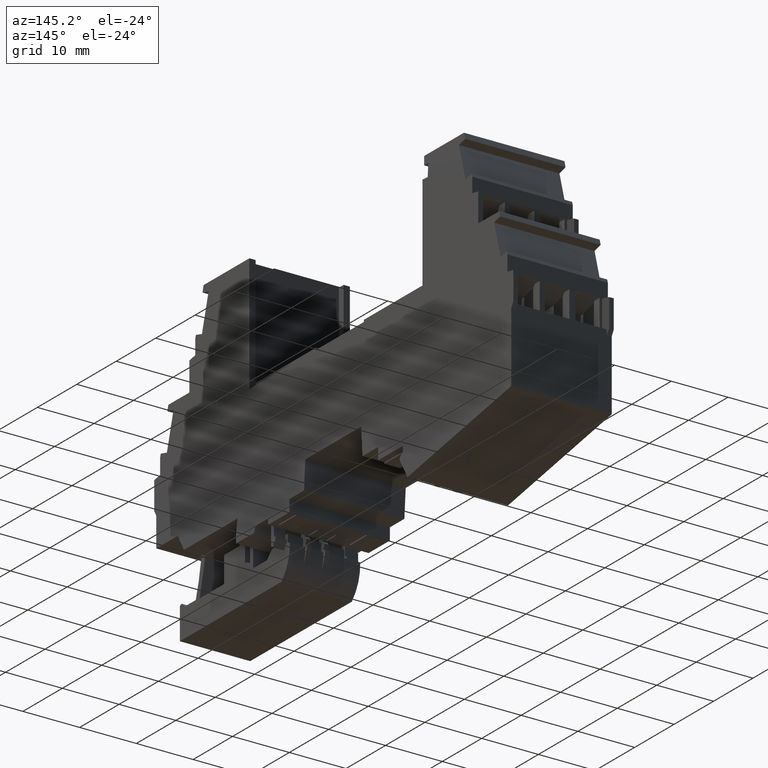
[diagram: clean part render]
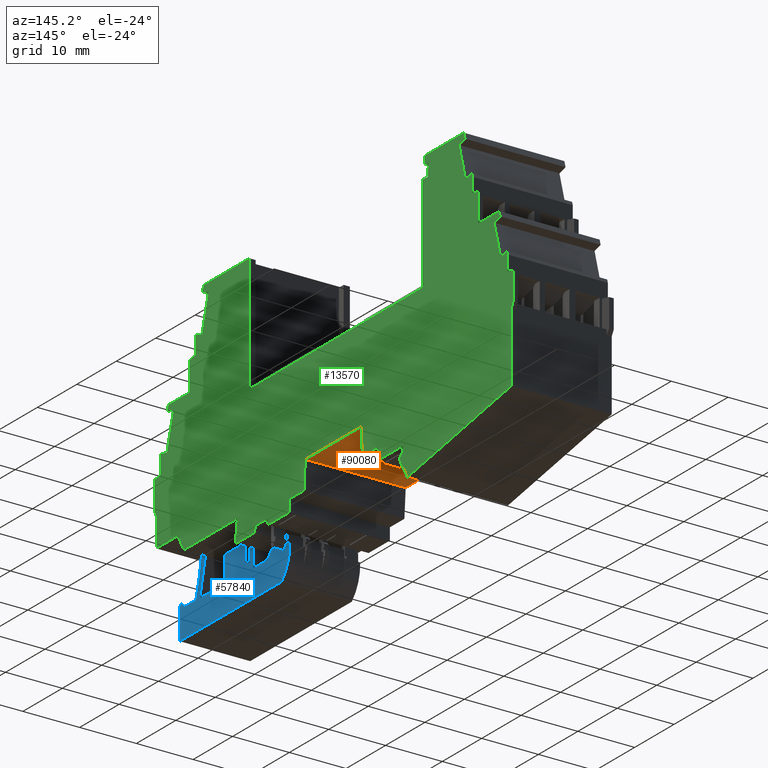
[diagram: same view with three faces highlighted in distinct colors, each labeled with its STEP entity id]
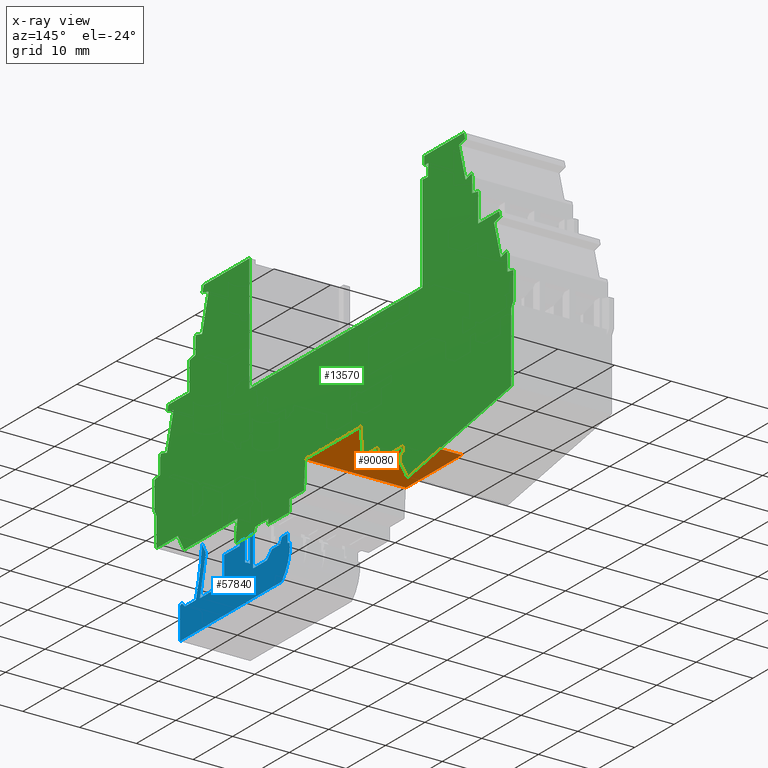
[diagram: x-ray of the same camera — body ghosted, the three highlighted faces saturated]
A machine part, auxiliary view with three faces highlighted in distinct colors.
The next image is the same camera in x-ray (body ghosted, the three faces saturated) — at least one of them is partly hidden behind the body in this view.
Their STEP definitions:

[orange] entity #90080 — the highlighted planar face has unit normal (0, 0, -1).
#3320=CARTESIAN_POINT('',(131.923225181691,11.9499999995831,
-1.11334144272988));
#3330=VERTEX_POINT('',#3320);
#3360=CARTESIAN_POINT('',(192.854165374852,11.9499999995832,
-1.11334144272988));
#3370=DIRECTION('',(1.,3.21694825271889E-17,-1.12961852401773E-23));
#3380=VECTOR('',#3370,1.);
#3390=LINE('',#3360,#3380);
#3400=CARTESIAN_POINT('',(146.082082747328,11.9499999995831,
-1.11334144272988));
#3410=VERTEX_POINT('',#3400);
#3420=EDGE_CURVE('',#3330,#3410,#3390,.T.);
#10810=CARTESIAN_POINT('',(146.082082747328,11.950000000364,
16.5866585537185));
#10820=VERTEX_POINT('',#10810);
#10850=CARTESIAN_POINT('',(192.854165375628,11.950000000364,
16.5866585537308));
#10860=DIRECTION('',(1.,3.21694941564861E-17,2.63640960903014E-13));
#10870=VECTOR('',#10860,1.);
#10880=LINE('',#10850,#10870);
#10890=CARTESIAN_POINT('',(131.923225181691,11.9500000003639,
16.5866585537148));
#10900=VERTEX_POINT('',#10890);
#10910=EDGE_CURVE('',#10900,#10820,#10880,.T.);
#89870=CARTESIAN_POINT('',(146.082082747328,11.9499999995831,
-1.11334144272988));
#89880=DIRECTION('',(3.21694825262236E-17,-1.,4.41130550527766E-11));
#89890=DIRECTION('',(1.,3.21694825262236E-17,-1.13026475887129E-23));
#89900=AXIS2_PLACEMENT_3D('',#89870,#89880,#89890);
#89910=PLANE('',#89900);
#89920=CARTESIAN_POINT('',(131.923225181691,11.9500000009027,
28.8000000021846));
#89930=DIRECTION('',(-1.13026475887129E-23,-4.41130550527766E-11,-1.));
#89940=VECTOR('',#89930,1.);
#89950=LINE('',#89920,#89940);
#89960=EDGE_CURVE('',#10900,#3330,#89950,.T.);
#89970=ORIENTED_EDGE('',*,*,#89960,.T.);
#89980=ORIENTED_EDGE('',*,*,#10910,.F.);
#89990=CARTESIAN_POINT('',(146.082082747328,11.9500000009027,
28.800000001564));
#90000=DIRECTION('',(-1.13026475887129E-23,-4.41130550527766E-11,-1.));
#90010=VECTOR('',#90000,1.);
#90020=LINE('',#89990,#90010);
#90030=EDGE_CURVE('',#10820,#3410,#90020,.T.);
#90040=ORIENTED_EDGE('',*,*,#90030,.F.);
#90050=ORIENTED_EDGE('',*,*,#3420,.T.);
#90060=EDGE_LOOP('',(#90050,#90040,#89980,#89970));
#90070=FACE_OUTER_BOUND('',#90060,.T.);
#90080=ADVANCED_FACE('',(#90070),#89910,.T.);

[blue] entity #57840 — the highlighted planar face has unit normal (1, 0, 0).
#51550=CARTESIAN_POINT('',(100.745063777333,9.61434649274897,
12.4366585568556));
#51560=VERTEX_POINT('',#51550);
#51590=CARTESIAN_POINT('',(94.0893224635806,21.1424286102025,
12.4366585563462));
#51600=DIRECTION('',(-0.5,0.866025403784439,-3.82689712336887E-11));
#51610=VECTOR('',#51600,1.);
#51620=LINE('',#51590,#51610);
#51630=CARTESIAN_POINT('',(99.7945118984799,11.2607506421518,
12.4366585567829));
#51640=VERTEX_POINT('',#51630);
#51650=EDGE_CURVE('',#51560,#51640,#51620,.T.);
#53090=CARTESIAN_POINT('',(98.1962249565624,3.04534658349906,
12.4366585571451));
#53100=VERTEX_POINT('',#53090);
#53510=CARTESIAN_POINT('',(63.4807811780964,14.0623254594777,
12.4366585566545));
#53520=DIRECTION('',(-1.31820480445855E-13,4.41130550527766E-11,1.));
#53530=DIRECTION('',(0.949996010420321,-0.312262037695065,
1.39000613902499E-11));
#53540=AXIS2_PLACEMENT_3D('',#53510,#53520,#53530);
#53550=CIRCLE('',#53540,36.42164);
#53560=EDGE_CURVE('',#53100,#51640,#53550,.T.);
#54220=CARTESIAN_POINT('',(95.4258124931298,3.04534658349906,
12.4366585571447));
#54230=VERTEX_POINT('',#54220);
#54260=CARTESIAN_POINT('',(171.854165368655,-73.3830062920261,
12.4366585605263));
#54270=DIRECTION('',(-0.707106781186548,0.707106781186547,
-3.1285900416963E-11));
#54280=VECTOR('',#54270,1.);
#54290=LINE('',#54260,#54280);
#54300=CARTESIAN_POINT('',(94.8358629994676,3.63529607716127,
12.4366585571186));
#54310=VERTEX_POINT('',#54300);
#54320=EDGE_CURVE('',#54230,#54310,#54290,.T.);
#55450=CARTESIAN_POINT('',(171.854165368655,3.04534658349906,
12.4366585571548));
#55460=DIRECTION('',(1.,1.56391626156808E-19,1.31820480445855E-13));
#55470=VECTOR('',#55460,1.);
#55480=LINE('',#55450,#55470);
#55490=EDGE_CURVE('',#54230,#53100,#55480,.T.);
#55620=CARTESIAN_POINT('',(120.765599077644,0.59869392470689,
12.436658557256));
#55630=DIRECTION('',(-1.31820480445855E-13,4.41130550527766E-11,1.));
#55640=DIRECTION('',(1.,1.56391622925634E-19,1.31820480445856E-13));
#55650=AXIS2_PLACEMENT_3D('',#55620,#55630,#55640);
#55660=PLANE('',#55650);
#55670=CARTESIAN_POINT('',(94.5530202869921,3.35245336468576,
12.4366585571311));
#55680=DIRECTION('',(-1.31820480445855E-13,4.41130550527766E-11,1.));
#55690=DIRECTION('',(1.,1.56391622925634E-19,1.31820480445855E-13));
#55700=AXIS2_PLACEMENT_3D('',#55670,#55680,#55690);
#55710=CIRCLE('',#55700,0.4);
#55720=CARTESIAN_POINT('',(94.1530202869931,3.35245336468577,
12.436658557131));
#55730=VERTEX_POINT('',#55720);
#55740=EDGE_CURVE('',#54310,#55730,#55710,.T.);
#55750=ORIENTED_EDGE('',*,*,#55740,.T.);
#55760=ORIENTED_EDGE('',*,*,#54320,.T.);
#55770=ORIENTED_EDGE('',*,*,#55490,.F.);
#55780=ORIENTED_EDGE('',*,*,#53560,.F.);
#55790=ORIENTED_EDGE('',*,*,#51650,.T.);
#55800=CARTESIAN_POINT('',(98.8921021838281,1.58216729906143,
12.4366585572097));
#55810=DIRECTION('',(0.224788299976077,0.974407625274898,
-4.29544655158954E-11));
#55820=VECTOR('',#55810,1.);
#55830=LINE('',#55800,#55820);
#55840=CARTESIAN_POINT('',(99.2076506579992,2.95000023079729,
12.4366585571494));
#55850=VERTEX_POINT('',#55840);
#55860=EDGE_CURVE('',#55850,#51560,#55830,.T.);
#55870=ORIENTED_EDGE('',*,*,#55860,.T.);
#55880=CARTESIAN_POINT('',(171.854165368655,2.95000023079729,
12.436658557159));
#55890=DIRECTION('',(-1.,-1.5640957856104E-19,-1.31820480445855E-13));
#55900=VECTOR('',#55890,1.);
#55910=LINE('',#55880,#55900);
#55920=CARTESIAN_POINT('',(105.381749091258,2.95000023079729,
12.4366585571502));
#55930=VERTEX_POINT('',#55920);
#55940=EDGE_CURVE('',#55930,#55850,#55910,.T.);
#55950=ORIENTED_EDGE('',*,*,#55940,.T.);
#55960=CARTESIAN_POINT('',(105.381749091258,21.1424286102025,
12.4366585563477));
#55970=DIRECTION('',(1.56403759803267E-19,-1.,4.41130550527766E-11));
#55980=VECTOR('',#55970,1.);
#55990=LINE('',#55960,#55980);
#56000=CARTESIAN_POINT('',(105.381749091258,7.5500006771132,
12.4366585569473));
#56010=VERTEX_POINT('',#56000);
#56020=EDGE_CURVE('',#56010,#55930,#55990,.T.);
#56030=ORIENTED_EDGE('',*,*,#56020,.T.);
#56040=CARTESIAN_POINT('',(171.854165368655,7.55000067711319,
12.4366585569561));
#56050=DIRECTION('',(1.,1.5640957856104E-19,1.31820480445855E-13));
#56060=VECTOR('',#56050,1.);
#56070=LINE('',#56040,#56060);
#56080=CARTESIAN_POINT('',(109.305482962606,7.55000067711319,
12.4366585569478));
#56090=VERTEX_POINT('',#56080);
#56100=EDGE_CURVE('',#56010,#56090,#56070,.T.);
#56110=ORIENTED_EDGE('',*,*,#56100,.F.);
#56120=CARTESIAN_POINT('',(109.305482962606,21.1424286102025,
12.4366585563482));
#56130=DIRECTION('',(-1.56403759803267E-19,1.,-4.41130550527766E-11));
#56140=VECTOR('',#56130,1.);
#56150=LINE('',#56120,#56140);
#56160=CARTESIAN_POINT('',(109.305482962606,8.85000046142769,
12.4366585568905));
#56170=VERTEX_POINT('',#56160);
#56180=EDGE_CURVE('',#56090,#56170,#56150,.T.);
#56190=ORIENTED_EDGE('',*,*,#56180,.F.);
#56200=CARTESIAN_POINT('',(171.854165368655,8.85000046144371,
12.4366585568987));
#56210=DIRECTION('',(-1.,-2.56108516341008E-13,-1.31820480434553E-13));
#56220=VECTOR('',#56210,1.);
#56230=LINE('',#56200,#56220);
#56240=CARTESIAN_POINT('',(110.679216833954,8.85000046142805,
12.4366585568907));
#56250=VERTEX_POINT('',#56240);
#56260=EDGE_CURVE('',#56250,#56170,#56230,.T.);
#56270=ORIENTED_EDGE('',*,*,#56260,.T.);
#56280=CARTESIAN_POINT('',(110.679216833954,21.1424286102025,
12.4366585563484));
#56290=DIRECTION('',(1.56403759803267E-19,-1.,4.41130550527766E-11));
#56300=VECTOR('',#56290,1.);
#56310=LINE('',#56280,#56300);
#56320=CARTESIAN_POINT('',(110.679216833954,4.42514568667508,
12.4366585570859));
#56330=VERTEX_POINT('',#56320);
#56340=EDGE_CURVE('',#56250,#56330,#56310,.T.);
#56350=ORIENTED_EDGE('',*,*,#56340,.F.);
#56360=CARTESIAN_POINT('',(171.854165368655,-20.4075167047586,
12.4366585581894));
#56370=DIRECTION('',(-0.926570378631504,0.376121434436635,
-1.67140203646241E-11));
#56380=VECTOR('',#56370,1.);
#56390=LINE('',#56360,#56380);
#56400=CARTESIAN_POINT('',(111.336864791569,4.15818755928736,
12.4366585570977));
#56410=VERTEX_POINT('',#56400);
#56420=EDGE_CURVE('',#56410,#56330,#56390,.T.);
#56430=ORIENTED_EDGE('',*,*,#56420,.T.);
#56440=CARTESIAN_POINT('',(171.854165368655,-34.0603519013393,
12.4366585587916));
#56450=DIRECTION('',(-0.845507280671106,0.533963892348679,
-2.36662686193386E-11));
#56460=VECTOR('',#56450,1.);
#56470=LINE('',#56440,#56460);
#56480=CARTESIAN_POINT('',(111.936976935343,3.77919825492419,
12.4366585571145));
#56490=VERTEX_POINT('',#56480);
#56500=EDGE_CURVE('',#56490,#56410,#56470,.T.);
#56510=ORIENTED_EDGE('',*,*,#56500,.T.);
#56520=CARTESIAN_POINT('',(111.936976935343,21.1424286102025,
12.4366585563486));
#56530=DIRECTION('',(1.56403759803267E-19,-1.,4.41130550527766E-11));
#56540=VECTOR('',#56530,1.);
#56550=LINE('',#56520,#56540);
#56560=CARTESIAN_POINT('',(111.936976935343,8.85000046142837,
12.4366585568908));
#56570=VERTEX_POINT('',#56560);
#56580=EDGE_CURVE('',#56570,#56490,#56550,.T.);
#56590=ORIENTED_EDGE('',*,*,#56580,.T.);
#56600=CARTESIAN_POINT('',(112.795663618024,8.85000046142858,
12.4366585568909));
#56610=VERTEX_POINT('',#56600);
#56620=EDGE_CURVE('',#56610,#56570,#56230,.T.);
#56630=ORIENTED_EDGE('',*,*,#56620,.T.);
#56640=CARTESIAN_POINT('',(114.523251730572,21.1424286102025,
12.4366585563489));
#56650=DIRECTION('',(-0.139173100960069,-0.99026806874157,
4.3665404264635E-11));
#56660=VECTOR('',#56650,1.);
#56670=LINE('',#56640,#56660);
#56680=CARTESIAN_POINT('',(112.736976935343,8.43242301637669,
12.4366585569094));
#56690=VERTEX_POINT('',#56680);
#56700=EDGE_CURVE('',#56610,#56690,#56670,.T.);
#56710=ORIENTED_EDGE('',*,*,#56700,.F.);
#56720=CARTESIAN_POINT('',(112.736976935343,21.1424286102025,
12.4366585563487));
#56730=DIRECTION('',(1.56403759803267E-19,-1.,4.41130550527766E-11));
#56740=VECTOR('',#56730,1.);
#56750=LINE('',#56720,#56740);
#56760=CARTESIAN_POINT('',(112.736976935343,2.75000023079731,
12.43665855716));
#56770=VERTEX_POINT('',#56760);
#56780=EDGE_CURVE('',#56690,#56770,#56750,.T.);
#56790=ORIENTED_EDGE('',*,*,#56780,.F.);
#56800=CARTESIAN_POINT('',(171.854165368655,2.7500002307973,
12.4366585571678));
#56810=DIRECTION('',(-1.,-1.5640957856104E-19,-1.31820480445855E-13));
#56820=VECTOR('',#56810,1.);
#56830=LINE('',#56800,#56820);
#56840=CARTESIAN_POINT('',(116.228655212858,2.7500002307973,
12.4366585571605));
#56850=VERTEX_POINT('',#56840);
#56860=EDGE_CURVE('',#56850,#56770,#56830,.T.);
#56870=ORIENTED_EDGE('',*,*,#56860,.T.);
#56880=CARTESIAN_POINT('',(134.62108359226,21.1424286102025,
12.4366585563516));
#56890=DIRECTION('',(0.707106781186479,0.707106781186616,
-3.10994701846894E-11));
#56900=VECTOR('',#56890,1.);
#56910=LINE('',#56880,#56900);
#56920=CARTESIAN_POINT('',(117.52400156556,4.04534658349903,
12.4366585571035));
#56930=VERTEX_POINT('',#56920);
#56940=EDGE_CURVE('',#56850,#56930,#56910,.T.);
#56950=ORIENTED_EDGE('',*,*,#56940,.F.);
#56960=CARTESIAN_POINT('',(171.854165368655,4.04534658349903,
12.4366585571107));
#56970=DIRECTION('',(1.,1.5640957856104E-19,1.31820480445855E-13));
#56980=VECTOR('',#56970,1.);
#56990=LINE('',#56960,#56980);
#57000=CARTESIAN_POINT('',(119.542395506468,4.04534658349904,
12.4366585571038));
#57010=VERTEX_POINT('',#57000);
#57020=EDGE_CURVE('',#56930,#57010,#56990,.T.);
#57030=ORIENTED_EDGE('',*,*,#57020,.F.);
#57040=CARTESIAN_POINT('',(127.4333564419,21.1424286102025,
12.4366585563506));
#57050=DIRECTION('',(0.419058177463056,0.907959384499847,
-3.99976257430958E-11));
#57060=VECTOR('',#57050,1.);
#57070=LINE('',#57040,#57060);
#57080=CARTESIAN_POINT('',(120.003933968008,5.04534658349902,
12.4366585570597));
#57090=VERTEX_POINT('',#57080);
#57100=EDGE_CURVE('',#57010,#57090,#57070,.T.);
#57110=ORIENTED_EDGE('',*,*,#57100,.F.);
#57120=CARTESIAN_POINT('',(171.854165368655,5.04534658349902,
12.4366585570666));
#57130=DIRECTION('',(-1.,5.53547416526968E-17,-1.31820480445855E-13));
#57140=VECTOR('',#57130,1.);
#57150=LINE('',#57120,#57140);
#57160=CARTESIAN_POINT('',(121.506786006473,5.04534658349903,
12.4366585570599));
#57170=VERTEX_POINT('',#57160);
#57180=EDGE_CURVE('',#57170,#57090,#57150,.T.);
#57190=ORIENTED_EDGE('',*,*,#57180,.T.);
#57200=CARTESIAN_POINT('',(121.506786006473,21.1424286102025,
12.4366585563498));
#57210=DIRECTION('',(-4.16750657965642E-16,-1.,4.41130550527766E-11));
#57220=VECTOR('',#57210,1.);
#57230=LINE('',#57200,#57220);
#57240=CARTESIAN_POINT('',(121.506786006473,3.57008629820599,
12.436658557125));
#57250=VERTEX_POINT('',#57240);
#57260=EDGE_CURVE('',#57170,#57250,#57230,.T.);
#57270=ORIENTED_EDGE('',*,*,#57260,.F.);
#57280=CARTESIAN_POINT('',(171.854165368655,-9.92045334291416,
12.4366585577267));
#57290=DIRECTION('',(0.965925826289068,-0.258819045102521,
1.15446456832551E-11));
#57300=VECTOR('',#57290,1.);
#57310=LINE('',#57280,#57300);
#57320=CARTESIAN_POINT('',(122.031749091334,3.42942286356113,
12.4366585571313));
#57330=VERTEX_POINT('',#57320);
#57340=EDGE_CURVE('',#57250,#57330,#57310,.T.);
#57350=ORIENTED_EDGE('',*,*,#57340,.F.);
#57360=CARTESIAN_POINT('',(122.987089923097,21.1424286102025,
12.43665855635));
#57370=DIRECTION('',(0.0538561531184888,0.998548704255971,
-4.40419347364283E-11));
#57380=VECTOR('',#57370,1.);
#57390=LINE('',#57360,#57380);
#57400=CARTESIAN_POINT('',(121.951092374715,1.93396403097842,
12.4366585571972));
#57410=VERTEX_POINT('',#57400);
#57420=EDGE_CURVE('',#57410,#57330,#57390,.T.);
#57430=ORIENTED_EDGE('',*,*,#57420,.T.);
#57440=CARTESIAN_POINT('',(127.043068339453,21.1424286102025,
12.4366585563506));
#57450=DIRECTION('',(0.256239716690482,0.966613266818939,
-4.26064905885134E-11));
#57460=VECTOR('',#57450,1.);
#57470=LINE('',#57440,#57460);
#57480=CARTESIAN_POINT('',(121.567339488194,0.486332742270843,
12.436658557261));
#57490=VERTEX_POINT('',#57480);
#57500=EDGE_CURVE('',#57490,#57410,#57470,.T.);
#57510=ORIENTED_EDGE('',*,*,#57500,.T.);
#57520=CARTESIAN_POINT('',(132.152085019205,21.1424286102025,
12.4366585563512));
#57530=DIRECTION('',(0.456039483983704,0.889959543489409,
-3.91987328858378E-11));
#57540=VECTOR('',#57530,1.);
#57550=LINE('',#57520,#57540);
#57560=CARTESIAN_POINT('',(120.884028548035,-0.847146295670019,
12.4366585573198));
#57570=VERTEX_POINT('',#57560);
#57580=EDGE_CURVE('',#57570,#57490,#57550,.T.);
#57590=ORIENTED_EDGE('',*,*,#57580,.T.);
#57600=CARTESIAN_POINT('',(138.959075371115,21.1424286102025,
12.4366585563521));
#57610=DIRECTION('',(0.634994923914638,0.772516308308533,
-3.3994387145847E-11));
#57620=VECTOR('',#57610,1.);
#57630=LINE('',#57600,#57620);
#57640=CARTESIAN_POINT('',(119.932578084438,-2.00465318587544,
12.4366585573707));
#57650=VERTEX_POINT('',#57640);
#57660=EDGE_CURVE('',#57650,#57570,#57630,.T.);
#57670=ORIENTED_EDGE('',*,*,#57660,.T.);
#57680=CARTESIAN_POINT('',(171.854165368655,-2.00465318587544,
12.4366585573776));
#57690=DIRECTION('',(-1.,-1.5640957856104E-19,-1.31820480445855E-13));
#57700=VECTOR('',#57690,1.);
#57710=LINE('',#57680,#57700);
#57720=CARTESIAN_POINT('',(94.1530202869918,-2.00465318587544,
12.4366585573673));
#57730=VERTEX_POINT('',#57720);
#57740=EDGE_CURVE('',#57650,#57730,#57710,.T.);
#57750=ORIENTED_EDGE('',*,*,#57740,.F.);
#57760=CARTESIAN_POINT('',(94.1530202869977,21.1424286102025,
12.4366585563462));
#57770=DIRECTION('',(2.56261158132751E-13,1.,-4.41130550527766E-11));
#57780=VECTOR('',#57770,1.);
#57790=LINE('',#57760,#57780);
#57800=EDGE_CURVE('',#57730,#55730,#57790,.T.);
#57810=ORIENTED_EDGE('',*,*,#57800,.F.);
#57820=EDGE_LOOP('',(#57810,#57750,#57670,#57590,#57510,#57430,#57350,
#57270,#57190,#57110,#57030,#56950,#56870,#56790,#56710,#56630,#56590,
#56510,#56430,#56350,#56270,#56190,#56110,#56030,#55950,#55870,#55790,
#55780,#55770,#55760,#55750));
#57830=FACE_OUTER_BOUND('',#57820,.T.);
#57840=ADVANCED_FACE('',(#57830),#55660,.T.);

[green] entity #13570 — the highlighted planar face has unit normal (-1, 0, -0).
#7900=CARTESIAN_POINT('',(184.675787432874,22.3748719563357,
16.5866585532688));
#7910=DIRECTION('',(2.63640960903014E-13,-4.41130550527766E-11,-1.));
#7920=DIRECTION('',(1.,1.56415391496086E-19,2.63640960903014E-13));
#7930=AXIS2_PLACEMENT_3D('',#7900,#7910,#7920);
#7940=PLANE('',#7930);
#7950=CARTESIAN_POINT('',(117.753020248872,7.14242861452253,
16.5866585539231));
#7960=DIRECTION('',(2.56261158126899E-13,1.,-4.41130550527765E-11));
#7970=VECTOR('',#7960,1.);
#7980=LINE('',#7950,#7970);
#7990=CARTESIAN_POINT('',(117.753020248877,28.2748719563695,
16.5866585529909));
#8000=VERTEX_POINT('',#7990);
#8010=CARTESIAN_POINT('',(117.753020248883,48.9738971845509,
16.5866585520778));
#8020=VERTEX_POINT('',#8010);
#8030=EDGE_CURVE('',#8000,#8020,#7980,.T.);
#8040=ORIENTED_EDGE('',*,*,#8030,.T.);
#8050=CARTESIAN_POINT('',(192.854165375628,28.2748719563694,
16.5866585530107));
#8060=DIRECTION('',(-1.,2.48285100604354E-16,-2.63640960903026E-13));
#8070=VECTOR('',#8060,1.);
#8080=LINE('',#8050,#8070);
#8090=CARTESIAN_POINT('',(161.653020459409,28.2748719563694,
16.5866585530025));
#8100=VERTEX_POINT('',#8090);
#8110=EDGE_CURVE('',#8100,#8000,#8080,.T.);
#8120=ORIENTED_EDGE('',*,*,#8110,.T.);
#8130=CARTESIAN_POINT('',(161.653020459409,7.14242861452253,
16.5866585539347));
#8140=DIRECTION('',(1.56403753782132E-19,-1.,4.41130550527766E-11));
#8150=VECTOR('',#8140,1.);
#8160=LINE('',#8130,#8150);
#8170=CARTESIAN_POINT('',(161.653020459409,45.4024770623582,
16.5866585522469));
#8180=VERTEX_POINT('',#8170);
#8190=EDGE_CURVE('',#8180,#8100,#8160,.T.);
#8200=ORIENTED_EDGE('',*,*,#8190,.T.);
#8210=CARTESIAN_POINT('',(171.854165368837,44.5655827274539,
16.5866585522865));
#8220=DIRECTION('',(0.996651672605884,-0.0817645613447162,
3.86964880567599E-12));
#8230=VECTOR('',#8220,1.);
#8240=LINE('',#8210,#8230);
#8250=CARTESIAN_POINT('',(162.95439787,45.2957130283541,16.586658552252)
);
#8260=VERTEX_POINT('',#8250);
#8270=EDGE_CURVE('',#8180,#8260,#8240,.T.);
#8280=ORIENTED_EDGE('',*,*,#8270,.F.);
#8290=CARTESIAN_POINT('',(160.972880395288,21.1424286103838,
16.5866585563795));
#8300=DIRECTION('',(0.0817645613447245,0.996651672605883,
-4.7142009089488E-11));
#8310=VECTOR('',#8300,1.);
#8320=LINE('',#8290,#8310);
#8330=CARTESIAN_POINT('',(163.134058711615,47.485650519029,
16.5866585521554));
#8340=VERTEX_POINT('',#8330);
#8350=EDGE_CURVE('',#8260,#8340,#8320,.T.);
#8360=ORIENTED_EDGE('',*,*,#8350,.F.);
#8370=CARTESIAN_POINT('',(171.854165368837,47.485650519029,
16.5866585521577));
#8380=DIRECTION('',(-1.,-2.48597913434857E-16,-2.63640960903007E-13));
#8390=VECTOR('',#8380,1.);
#8400=LINE('',#8370,#8390);
#8410=CARTESIAN_POINT('',(162.074778127639,47.485650519029,
16.5866585521551));
#8420=VERTEX_POINT('',#8410);
#8430=EDGE_CURVE('',#8340,#8420,#8400,.T.);
#8440=ORIENTED_EDGE('',*,*,#8430,.F.);
#8450=CARTESIAN_POINT('',(162.074778127639,21.1424286103838,
16.5866585563312));
#8460=DIRECTION('',(-1.56385860097129E-19,1.,-4.37046590461377E-11));
#8470=VECTOR('',#8460,1.);
#8480=LINE('',#8450,#8470);
#8490=CARTESIAN_POINT('',(162.074778127639,48.9738971845509,
16.5866585520895));
#8500=VERTEX_POINT('',#8490);
#8510=EDGE_CURVE('',#8420,#8500,#8480,.T.);
#8520=ORIENTED_EDGE('',*,*,#8510,.F.);
#8530=CARTESIAN_POINT('',(171.854165368837,48.9738971845509,
16.5866585520921));
#8540=DIRECTION('',(1.,1.56452388374348E-19,2.6364096090302E-13));
#8550=VECTOR('',#8540,1.);
#8560=LINE('',#8530,#8550);
#8570=CARTESIAN_POINT('',(172.15328738759,48.9738971845509,
16.5866585520921));
#8580=VERTEX_POINT('',#8570);
#8590=EDGE_CURVE('',#8500,#8580,#8560,.T.);
#8600=ORIENTED_EDGE('',*,*,#8590,.F.);
#8610=CARTESIAN_POINT('',(179.767115612998,21.1424286103838,
16.5866585533005));
#8620=DIRECTION('',(-0.263873049965359,0.964557418457802,
-4.24800291574425E-11));
#8630=VECTOR('',#8620,1.);
#8640=LINE('',#8610,#8630);
#8650=CARTESIAN_POINT('',(172.44654451055,47.9019296853916,
16.5866585521395));
#8660=VERTEX_POINT('',#8650);
#8670=EDGE_CURVE('',#8660,#8580,#8640,.T.);
#8680=ORIENTED_EDGE('',*,*,#8670,.T.);
#8690=CARTESIAN_POINT('',(106.45187560105,29.8478312632946,
16.5866585529358));
#8700=DIRECTION('',(0.964557418457813,0.26387304996532,
-1.18945615400936E-11));
#8710=VECTOR('',#8700,1.);
#8720=LINE('',#8690,#8710);
#8730=CARTESIAN_POINT('',(170.903252641018,47.4797328054473,
16.5866585521577));
#8740=VERTEX_POINT('',#8730);
#8750=EDGE_CURVE('',#8740,#8660,#8720,.T.);
#8760=ORIENTED_EDGE('',*,*,#8750,.T.);
#8770=CARTESIAN_POINT('',(178.108323747024,21.1424286103838,
16.5866585533009));
#8780=DIRECTION('',(-0.263873049965258,0.96455741845783,
-4.24800014018637E-11));
#8790=VECTOR('',#8780,1.);
#8800=LINE('',#8770,#8790);
#8810=CARTESIAN_POINT('',(172.572249682049,41.3789071337014,
16.5866585524273));
#8820=VERTEX_POINT('',#8810);
#8830=EDGE_CURVE('',#8820,#8740,#8800,.T.);
#8840=ORIENTED_EDGE('',*,*,#8830,.T.);
#8850=CARTESIAN_POINT('',(106.45187560105,23.2904196681165,
16.586658553225));
#8860=DIRECTION('',(-0.964557418457773,-0.263873049965463,
1.18945892956772E-11));
#8870=VECTOR('',#8860,1.);
#8880=LINE('',#8850,#8870);
#8890=CARTESIAN_POINT('',(174.115541551581,41.8011040136461,
16.5866585524091));
#8900=VERTEX_POINT('',#8890);
#8910=EDGE_CURVE('',#8900,#8820,#8880,.T.);
#8920=ORIENTED_EDGE('',*,*,#8910,.T.);
#8930=CARTESIAN_POINT('',(179.767115612999,21.1424286103838,
16.5866585533005));
#8940=DIRECTION('',(0.263873049965441,-0.964557418457779,
4.24800291574451E-11));
#8950=VECTOR('',#8940,1.);
#8960=LINE('',#8930,#8950);
#8970=CARTESIAN_POINT('',(174.27578790338,41.2153420063889,
16.5866585524349));
#8980=VERTEX_POINT('',#8970);
#8990=EDGE_CURVE('',#8900,#8980,#8960,.T.);
#9000=ORIENTED_EDGE('',*,*,#8990,.F.);
#9010=CARTESIAN_POINT('',(174.27578790338,21.1424286103838,
16.5866585533019));
#9020=DIRECTION('',(-1.56403759853755E-19,1.,-4.41130550527766E-11));
#9030=VECTOR('',#9020,1.);
#9040=LINE('',#9010,#9030);
#9050=CARTESIAN_POINT('',(174.27578790338,38.6248719563402,
16.5866585525492));
#9060=VERTEX_POINT('',#9050);
#9070=EDGE_CURVE('',#9060,#8980,#9040,.T.);
#9080=ORIENTED_EDGE('',*,*,#9070,.T.);
#9090=CARTESIAN_POINT('',(97.5518756010255,52.1533677607556,
16.5866585519518));
#9100=DIRECTION('',(0.984807753012208,-0.173648177666932,
7.40053481714602E-12));
#9110=VECTOR('',#9100,1.);
#9120=LINE('',#9090,#9110);
#9130=CARTESIAN_POINT('',(175.775787903259,38.3603814852989,
16.5866585525613));
#9140=VERTEX_POINT('',#9130);
#9150=EDGE_CURVE('',#9060,#9140,#9120,.T.);
#9160=ORIENTED_EDGE('',*,*,#9150,.F.);
#9170=CARTESIAN_POINT('',(175.775787903259,36.842428610376,
16.5866585526066));
#9180=DIRECTION('',(-1.20188954188481E-15,-1.,4.41130550527766E-11));
#9190=VECTOR('',#9180,1.);
#9200=LINE('',#9170,#9190);
#9210=CARTESIAN_POINT('',(175.775787903259,33.2748719563207,
16.5866585527856));
#9220=VERTEX_POINT('',#9210);
#9230=EDGE_CURVE('',#9140,#9220,#9200,.T.);
#9240=ORIENTED_EDGE('',*,*,#9230,.F.);
#9250=CARTESIAN_POINT('',(106.45187560105,33.2748719563207,
16.5866585527846));
#9260=DIRECTION('',(-1.,-1.56392131546743E-19,2.63640960925625E-13));
#9270=VECTOR('',#9260,1.);
#9280=LINE('',#9250,#9270);
#9290=CARTESIAN_POINT('',(181.094056076672,33.2748719563207,
16.586658552787));
#9300=VERTEX_POINT('',#9290);
#9310=EDGE_CURVE('',#9300,#9220,#9280,.T.);
#9320=ORIENTED_EDGE('',*,*,#9310,.T.);
#9330=CARTESIAN_POINT('',(184.413116993069,21.1424286103838,
16.5866585532992));
#9340=DIRECTION('',(0.26387304996536,-0.964557418457802,
4.24800291574425E-11));
#9350=VECTOR('',#9340,1.);
#9360=LINE('',#9330,#9350);
#9370=CARTESIAN_POINT('',(181.34654451055,32.3519296853916,
16.5866585528278));
#9380=VERTEX_POINT('',#9370);
#9390=EDGE_CURVE('',#9300,#9380,#9360,.T.);
#9400=ORIENTED_EDGE('',*,*,#9390,.F.);
#9410=CARTESIAN_POINT('',(106.45187560105,11.8630667798632,
16.5866585537291));
#9420=DIRECTION('',(-0.964557418457813,-0.26387304996532,
1.18945615400936E-11));
#9430=VECTOR('',#9420,1.);
#9440=LINE('',#9410,#9430);
#9450=CARTESIAN_POINT('',(179.803252641018,31.9297328054473,
16.586658552846));
#9460=VERTEX_POINT('',#9450);
#9470=EDGE_CURVE('',#9380,#9460,#9440,.T.);
#9480=ORIENTED_EDGE('',*,*,#9470,.F.);
#9490=CARTESIAN_POINT('',(182.754325127098,21.1424286103838,
16.5866585532997));
#9500=DIRECTION('',(0.263873049965258,-0.96455741845783,
4.24800014018637E-11));
#9510=VECTOR('',#9500,1.);
#9520=LINE('',#9490,#9510);
#9530=CARTESIAN_POINT('',(181.472249682049,25.8289071337014,
16.5866585531156));
#9540=VERTEX_POINT('',#9530);
#9550=EDGE_CURVE('',#9460,#9540,#9520,.T.);
#9560=ORIENTED_EDGE('',*,*,#9550,.F.);
#9570=CARTESIAN_POINT('',(106.45187560105,5.30565518468365,
16.5866585540184));
#9580=DIRECTION('',(0.964557418457773,0.263873049965463,
-1.18945892956772E-11));
#9590=VECTOR('',#9580,1.);
#9600=LINE('',#9570,#9590);
#9610=CARTESIAN_POINT('',(183.015541551581,26.2511040136461,
16.5866585530974));
#9620=VERTEX_POINT('',#9610);
#9630=EDGE_CURVE('',#9540,#9620,#9600,.T.);
#9640=ORIENTED_EDGE('',*,*,#9630,.F.);
#9650=CARTESIAN_POINT('',(184.413116993069,21.1424286103838,
16.5866585532992));
#9660=DIRECTION('',(0.263873049965441,-0.964557418457779,
4.24800291574451E-11));
#9670=VECTOR('',#9660,1.);
#9680=LINE('',#9650,#9670);
#9690=CARTESIAN_POINT('',(183.17578790338,25.6653420063888,
16.5866585531233));
#9700=VERTEX_POINT('',#9690);
#9710=EDGE_CURVE('',#9620,#9700,#9680,.T.);
#9720=ORIENTED_EDGE('',*,*,#9710,.F.);
#9730=CARTESIAN_POINT('',(183.17578790338,21.1424286103838,
16.5866585532996));
#9740=DIRECTION('',(-1.56403759853755E-19,1.,-4.41130550527766E-11));
#9750=VECTOR('',#9740,1.);
#9760=LINE('',#9730,#9750);
#9770=CARTESIAN_POINT('',(183.17578790338,22.9248719563596,
16.5866585532441));
#9780=VERTEX_POINT('',#9770);
#9790=EDGE_CURVE('',#9780,#9700,#9760,.T.);
#9800=ORIENTED_EDGE('',*,*,#9790,.T.);
#9810=CARTESIAN_POINT('',(106.45187560105,36.4533677607706,
16.5866585526444));
#9820=DIRECTION('',(0.984807753012208,-0.173648177666932,
7.40053481714602E-12));
#9830=VECTOR('',#9820,1.);
#9840=LINE('',#9810,#9830);
#9850=CARTESIAN_POINT('',(184.675787903284,22.6603814853139,
16.5866585532562));
#9860=VERTEX_POINT('',#9850);
#9870=EDGE_CURVE('',#9780,#9860,#9840,.T.);
#9880=ORIENTED_EDGE('',*,*,#9870,.F.);
#9890=CARTESIAN_POINT('',(184.675787903284,21.1424286103911,
16.5866585532992));
#9900=DIRECTION('',(-1.20188954188481E-15,-1.,4.41130550527766E-11));
#9910=VECTOR('',#9900,1.);
#9920=LINE('',#9890,#9910);
#9930=CARTESIAN_POINT('',(184.675787903284,17.7248719563694,
16.5866585534739));
#9940=VERTEX_POINT('',#9930);
#9950=EDGE_CURVE('',#9860,#9940,#9920,.T.);
#9960=ORIENTED_EDGE('',*,*,#9950,.F.);
#9970=CARTESIAN_POINT('',(186.648915157454,21.1424286103911,
16.5866585532986));
#9980=DIRECTION('',(-0.500000000000001,-0.866025403784438,
3.83347936117721E-11));
#9990=VECTOR('',#9980,1.);
#10000=LINE('',#9970,#9990);
#10010=CARTESIAN_POINT('',(184.153020565264,16.8194123663814,
16.5866585535137));
#10020=VERTEX_POINT('',#10010);
#10030=EDGE_CURVE('',#9940,#10020,#10000,.T.);
#10040=ORIENTED_EDGE('',*,*,#10030,.F.);
#10050=CARTESIAN_POINT('',(184.153020212364,21.1424286103838,
16.586658553323));
#10060=DIRECTION('',(1.56403759803267E-19,-1.,4.41130550527766E-11));
#10070=VECTOR('',#10060,1.);
#10080=LINE('',#10050,#10070);
#10090=CARTESIAN_POINT('',(184.153020212364,4.48200537829809,
16.586658554058));
#10100=VERTEX_POINT('',#10090);
#10110=EDGE_CURVE('',#10020,#10100,#10080,.T.);
#10120=ORIENTED_EDGE('',*,*,#10110,.F.);
#10130=CARTESIAN_POINT('',(171.854165368837,2.22474311541634,
16.5866585541543));
#10140=DIRECTION('',(-0.983571470813386,-0.18051914525056,
7.70395793158067E-12));
#10150=VECTOR('',#10140,1.);
#10160=LINE('',#10130,#10150);
#10170=CARTESIAN_POINT('',(157.833683409422,-0.348496851803688,
16.5866585542641));
#10180=VERTEX_POINT('',#10170);
#10190=EDGE_CURVE('',#10100,#10180,#10160,.T.);
#10200=ORIENTED_EDGE('',*,*,#10190,.F.);
#10210=CARTESIAN_POINT('',(145.320669821365,21.1424286103838,
16.5866585533128));
#10220=DIRECTION('',(-0.503170012398067,0.86418744414816,
-3.82546514229104E-11));
#10230=VECTOR('',#10220,1.);
#10240=LINE('',#10210,#10230);
#10250=CARTESIAN_POINT('',(155.874971806228,3.0155628744927,
16.5866585541152));
#10260=VERTEX_POINT('',#10250);
#10270=EDGE_CURVE('',#10180,#10260,#10240,.T.);
#10280=ORIENTED_EDGE('',*,*,#10270,.F.);
#10290=CARTESIAN_POINT('',(155.60280713689,41.999646730464,
16.5866585557033));
#10300=DIRECTION('',(-0.00698126029796187,0.999975630705395,
-4.339760989563E-11));
#10310=VECTOR('',#10300,1.);
#10320=LINE('',#10290,#10310);
#10330=CARTESIAN_POINT('',(155.871438858268,3.52161217117681,
16.5866585540929));
#10340=VERTEX_POINT('',#10330);
#10350=EDGE_CURVE('',#10260,#10340,#10320,.T.);
#10360=ORIENTED_EDGE('',*,*,#10350,.F.);
#10370=CARTESIAN_POINT('',(171.854165368837,14.7128377550225,
16.5866585536034));
#10380=DIRECTION('',(0.819152044288959,0.573576436351093,
-2.50862908858178E-11));
#10390=VECTOR('',#10380,1.);
#10400=LINE('',#10370,#10390);
#10410=CARTESIAN_POINT('',(156.626055212665,4.05000023098147,
16.5866585540698));
#10420=VERTEX_POINT('',#10410);
#10430=EDGE_CURVE('',#10340,#10420,#10400,.T.);
#10440=ORIENTED_EDGE('',*,*,#10430,.F.);
#10450=CARTESIAN_POINT('',(156.626055212665,21.1424286103838,
16.5866585565701));
#10460=DIRECTION('',(-1.24743704410233E-16,-1.,4.37046590461377E-11));
#10470=VECTOR('',#10460,1.);
#10480=LINE('',#10450,#10470);
#10490=CARTESIAN_POINT('',(156.626055212665,5.04534658368418,
16.5866585540259));
#10500=VERTEX_POINT('',#10490);
#10510=EDGE_CURVE('',#10500,#10420,#10480,.T.);
#10520=ORIENTED_EDGE('',*,*,#10510,.T.);
#10530=CARTESIAN_POINT('',(171.854165368837,5.04534658368418,
16.5866585540299));
#10540=DIRECTION('',(-1.,-1.56397384094788E-19,-2.63640960903014E-13));
#10550=VECTOR('',#10540,1.);
#10560=LINE('',#10530,#10550);
#10570=CARTESIAN_POINT('',(150.403020265986,5.04534658369137,
16.5866585540242));
#10580=VERTEX_POINT('',#10570);
#10590=EDGE_CURVE('',#10500,#10580,#10560,.T.);
#10600=ORIENTED_EDGE('',*,*,#10590,.F.);
#10610=CARTESIAN_POINT('',(150.403020249868,7.14242861452253,
16.5866585539317));
#10620=DIRECTION('',(1.56385859539037E-19,-1.,4.41130550527766E-11));
#10630=VECTOR('',#10620,1.);
#10640=LINE('',#10610,#10630);
#10650=CARTESIAN_POINT('',(150.403020249864,7.14534658368163,
16.5866585539316));
#10660=VERTEX_POINT('',#10650);
#10670=EDGE_CURVE('',#10660,#10580,#10640,.T.);
#10680=ORIENTED_EDGE('',*,*,#10670,.T.);
#10690=CARTESIAN_POINT('',(192.854165375628,7.14534658368885,
16.5866585539428));
#10700=DIRECTION('',(1.,1.56379538368425E-19,2.6364096090302E-13));
#10710=VECTOR('',#10700,1.);
#10720=LINE('',#10690,#10710);
#10730=CARTESIAN_POINT('',(146.41805684325,7.14534658368163,
16.5866585539305));
#10740=VERTEX_POINT('',#10730);
#10750=EDGE_CURVE('',#10740,#10660,#10720,.T.);
#10760=ORIENTED_EDGE('',*,*,#10750,.T.);
#10770=CARTESIAN_POINT('',(146.41826088753,7.14242861452253,
16.5866585539307));
#10780=DIRECTION('',(0.0697564737441256,-0.997564050259824,
4.40239774122163E-11));
#10790=VECTOR('',#10780,1.);
#10800=LINE('',#10770,#10790);
#10810=CARTESIAN_POINT('',(146.082082747328,11.950000000364,
16.5866585537185));
#10820=VERTEX_POINT('',#10810);
#10830=EDGE_CURVE('',#10820,#10740,#10800,.T.);
#10840=ORIENTED_EDGE('',*,*,#10830,.T.);
#10850=CARTESIAN_POINT('',(192.854165375628,11.950000000364,
16.5866585537308));
#10860=DIRECTION('',(1.,3.21694941564861E-17,2.63640960903014E-13));
#10870=VECTOR('',#10860,1.);
#10880=LINE('',#10850,#10870);
#10890=CARTESIAN_POINT('',(131.923225181691,11.9500000003639,
16.5866585537148));
#10900=VERTEX_POINT('',#10890);
#10910=EDGE_CURVE('',#10900,#10820,#10880,.T.);
#10920=ORIENTED_EDGE('',*,*,#10910,.T.);
#10930=CARTESIAN_POINT('',(131.587047041487,7.14242861452253,
16.5866585539268));
#10940=DIRECTION('',(0.0697564737442381,0.997564050259816,
-4.39872084983477E-11));
#10950=VECTOR('',#10940,1.);
#10960=LINE('',#10930,#10950);
#10970=CARTESIAN_POINT('',(131.587251085768,7.14534658368886,
16.5866585539266));
#10980=VERTEX_POINT('',#10970);
#10990=EDGE_CURVE('',#10980,#10900,#10960,.T.);
#11000=ORIENTED_EDGE('',*,*,#10990,.T.);
#11010=CARTESIAN_POINT('',(192.854165375628,7.14534658368886,
16.5866585539428));
#11020=DIRECTION('',(1.,1.56379538368425E-19,2.6364096090302E-13));
#11030=VECTOR('',#11020,1.);
#11040=LINE('',#11010,#11030);
#11050=CARTESIAN_POINT('',(127.90302024986,7.14534658368163,
16.5866585539256));
#11060=VERTEX_POINT('',#11050);
#11070=EDGE_CURVE('',#11060,#10980,#11040,.T.);
#11080=ORIENTED_EDGE('',*,*,#11070,.T.);
#11090=CARTESIAN_POINT('',(127.90302024986,7.14242861452253,
16.5866585539258));
#11100=DIRECTION('',(-1.56385859539037E-19,1.,-4.41130550527766E-11));
#11110=VECTOR('',#11100,1.);
#11120=LINE('',#11090,#11110);
#11130=CARTESIAN_POINT('',(127.90302024986,5.04534658367533,
16.5866585540183));
#11140=VERTEX_POINT('',#11130);
#11150=EDGE_CURVE('',#11140,#11060,#11120,.T.);
#11160=ORIENTED_EDGE('',*,*,#11150,.T.);
#11170=CARTESIAN_POINT('',(171.854165368837,5.04534658368388,
16.5866585540299));
#11180=DIRECTION('',(1.,1.5641533649902E-19,2.63640960903014E-13));
#11190=VECTOR('',#11180,1.);
#11200=LINE('',#11170,#11190);
#11210=CARTESIAN_POINT('',(122.506786006668,5.04534658367533,
16.5866585540169));
#11220=VERTEX_POINT('',#11210);
#11230=EDGE_CURVE('',#11220,#11140,#11200,.T.);
#11240=ORIENTED_EDGE('',*,*,#11230,.T.);
#11250=CARTESIAN_POINT('',(122.506786006668,41.999646730464,
16.5866585571539));
#11260=DIRECTION('',(-1.56403813663469E-19,1.,-4.37046590461377E-11));
#11270=VECTOR('',#11260,1.);
#11280=LINE('',#11250,#11270);
#11290=CARTESIAN_POINT('',(122.506786006668,6.04534658367907,
16.5866585539728));
#11300=VERTEX_POINT('',#11290);
#11310=EDGE_CURVE('',#11220,#11300,#11280,.T.);
#11320=ORIENTED_EDGE('',*,*,#11310,.F.);
#11330=CARTESIAN_POINT('',(171.854165368837,6.04534658367907,
16.5866585539858));
#11340=DIRECTION('',(-1.,-1.56379431690556E-19,-2.63640960903014E-13));
#11350=VECTOR('',#11340,1.);
#11360=LINE('',#11330,#11350);
#11370=CARTESIAN_POINT('',(119.366249416037,6.04534658367907,
16.5866585539719));
#11380=VERTEX_POINT('',#11370);
#11390=EDGE_CURVE('',#11300,#11380,#11360,.T.);
#11400=ORIENTED_EDGE('',*,*,#11390,.F.);
#11410=CARTESIAN_POINT('',(126.334133428389,21.1424286103838,
16.5866585533078));
#11420=DIRECTION('',(-0.41905817746306,-0.907959384499846,
3.99423921476208E-11));
#11430=VECTOR('',#11420,1.);
#11440=LINE('',#11410,#11430);
#11450=CARTESIAN_POINT('',(118.904710954498,5.04534658368161,
16.5866585540159));
#11460=VERTEX_POINT('',#11450);
#11470=EDGE_CURVE('',#11380,#11460,#11440,.T.);
#11480=ORIENTED_EDGE('',*,*,#11470,.F.);
#11490=CARTESIAN_POINT('',(171.854165368837,5.04534658368161,
16.5866585540299));
#11500=DIRECTION('',(-1.,5.53547717995673E-17,-2.63640960903014E-13));
#11510=VECTOR('',#11500,1.);
#11520=LINE('',#11490,#11510);
#11530=CARTESIAN_POINT('',(114.376055212807,5.04534658368162,
16.5866585540147));
#11540=VERTEX_POINT('',#11530);
#11550=EDGE_CURVE('',#11460,#11540,#11520,.T.);
#11560=ORIENTED_EDGE('',*,*,#11550,.F.);
#11570=CARTESIAN_POINT('',(114.376055212909,41.999646730464,
16.5866585575103));
#11580=DIRECTION('',(1.24743686456667E-16,1.,-4.37046590461377E-11));
#11590=VECTOR('',#11580,1.);
#11600=LINE('',#11570,#11590);
#11610=CARTESIAN_POINT('',(114.376055213476,6.45000023019302,
16.5866585539528));
#11620=VERTEX_POINT('',#11610);
#11630=EDGE_CURVE('',#11540,#11620,#11600,.T.);
#11640=ORIENTED_EDGE('',*,*,#11630,.F.);
#11650=CARTESIAN_POINT('',(116.440941361054,21.1424286103838,
16.5866585533052));
#11660=DIRECTION('',(-0.139173100960066,-0.99026806874157,
4.36470717069407E-11));
#11670=VECTOR('',#11660,1.);
#11680=LINE('',#11650,#11670);
#11690=CARTESIAN_POINT('',(114.713353249285,8.85000046161212,
16.586658553847));
#11700=VERTEX_POINT('',#11690);
#11710=EDGE_CURVE('',#11700,#11620,#11680,.T.);
#11720=ORIENTED_EDGE('',*,*,#11710,.T.);
#11730=CARTESIAN_POINT('',(171.854165368837,8.85000046162509,
16.586658553862));
#11740=DIRECTION('',(-1.,-2.56108516346769E-13,-2.63640960891717E-13));
#11750=VECTOR('',#11740,1.);
#11760=LINE('',#11730,#11750);
#11770=CARTESIAN_POINT('',(101.186359164452,8.85000046160869,
16.5866585538434));
#11780=VERTEX_POINT('',#11770);
#11790=EDGE_CURVE('',#11700,#11780,#11760,.T.);
#11800=ORIENTED_EDGE('',*,*,#11790,.F.);
#11810=CARTESIAN_POINT('',(94.0893224637626,21.1424286103838,
16.5866585532993));
#11820=DIRECTION('',(-0.5,0.866025403784439,-3.83348629702002E-11));
#11830=VECTOR('',#11820,1.);
#11840=LINE('',#11810,#11830);
#11850=CARTESIAN_POINT('',(99.5724653283974,11.6453465836776,
16.5866585537197));
#11860=VERTEX_POINT('',#11850);
#11870=EDGE_CURVE('',#11780,#11860,#11840,.T.);
#11880=ORIENTED_EDGE('',*,*,#11870,.F.);
#11890=CARTESIAN_POINT('',(171.854165368837,11.6453465836961,
16.5866585537387));
#11900=DIRECTION('',(-1.,-2.56158420818811E-13,-2.63640960891711E-13));
#11910=VECTOR('',#11900,1.);
#11920=LINE('',#11890,#11910);
#11930=CARTESIAN_POINT('',(94.1530202869897,11.6453465836762,
16.5866585537182));
#11940=VERTEX_POINT('',#11930);
#11950=EDGE_CURVE('',#11860,#11940,#11920,.T.);
#11960=ORIENTED_EDGE('',*,*,#11950,.F.);
#11970=CARTESIAN_POINT('',(94.1530202869897,21.1424286103838,
16.5866585532993));
#11980=DIRECTION('',(1.56403759828511E-19,-1.,4.41130550527766E-11));
#11990=VECTOR('',#11980,1.);
#12000=LINE('',#11970,#11990);
#12010=CARTESIAN_POINT('',(94.1530202869897,16.8194125701285,
16.58665855349));
#12020=VERTEX_POINT('',#12010);
#12030=EDGE_CURVE('',#12020,#11940,#12000,.T.);
#12040=ORIENTED_EDGE('',*,*,#12030,.T.);
#12050=CARTESIAN_POINT('',(91.6571258124331,21.1424286103911,
16.5866585532986));
#12060=DIRECTION('',(0.500000000000001,-0.866025403784438,
3.83347936117608E-11));
#12070=VECTOR('',#12060,1.);
#12080=LINE('',#12050,#12070);
#12090=CARTESIAN_POINT('',(93.6302530666033,17.7248719563694,
16.5866585534499));
#12100=VERTEX_POINT('',#12090);
#12110=EDGE_CURVE('',#12100,#12020,#12080,.T.);
#12120=ORIENTED_EDGE('',*,*,#12110,.T.);
#12130=CARTESIAN_POINT('',(93.6302530666033,21.1424286103911,
16.5866585532992));
#12140=DIRECTION('',(1.20220234940447E-15,-1.,4.41130550527766E-11));
#12150=VECTOR('',#12140,1.);
#12160=LINE('',#12130,#12150);
#12170=CARTESIAN_POINT('',(93.6302530666033,22.6603814853139,
16.5866585532322));
#12180=VERTEX_POINT('',#12170);
#12190=EDGE_CURVE('',#12180,#12100,#12160,.T.);
#12200=ORIENTED_EDGE('',*,*,#12190,.T.);
#12210=CARTESIAN_POINT('',(171.854165368837,36.4533677607706,
16.5866585526444));
#12220=DIRECTION('',(-0.984807753012208,-0.173648177666932,
7.40053481716828E-12));
#12230=VECTOR('',#12220,1.);
#12240=LINE('',#12210,#12230);
#12250=CARTESIAN_POINT('',(95.130253066507,22.9248719563596,
16.5866585532209));
#12260=VERTEX_POINT('',#12250);
#12270=EDGE_CURVE('',#12260,#12180,#12240,.T.);
#12280=ORIENTED_EDGE('',*,*,#12270,.T.);
#12290=CARTESIAN_POINT('',(95.130253066507,21.1424286103838,
16.5866585532996));
#12300=DIRECTION('',(-1.56403759803267E-19,1.,-4.41130550527766E-11));
#12310=VECTOR('',#12300,1.);
#12320=LINE('',#12290,#12310);
#12330=CARTESIAN_POINT('',(95.130253066507,25.6653420063888,
16.5866585531));
#12340=VERTEX_POINT('',#12330);
#12350=EDGE_CURVE('',#12260,#12340,#12320,.T.);
#12360=ORIENTED_EDGE('',*,*,#12350,.F.);
#12370=CARTESIAN_POINT('',(93.8929239768177,21.1424286103838,
16.5866585532992));
#12380=DIRECTION('',(-0.263873049965441,-0.964557418457779,
4.24800291574511E-11));
#12390=VECTOR('',#12380,1.);
#12400=LINE('',#12370,#12390);
#12410=CARTESIAN_POINT('',(95.2904994183063,26.2511040136461,
16.5866585530742));
#12420=VERTEX_POINT('',#12410);
#12430=EDGE_CURVE('',#12420,#12340,#12400,.T.);
#12440=ORIENTED_EDGE('',*,*,#12430,.T.);
#12450=CARTESIAN_POINT('',(171.854165368837,5.30565518468365,
16.5866585540184));
#12460=DIRECTION('',(-0.964557418457773,0.263873049965463,
-1.18945892956554E-11));
#12470=VECTOR('',#12460,1.);
#12480=LINE('',#12450,#12470);
#12490=CARTESIAN_POINT('',(96.8337912878384,25.8289071337014,
16.5866585530933));
#12500=VERTEX_POINT('',#12490);
#12510=EDGE_CURVE('',#12500,#12420,#12480,.T.);
#12520=ORIENTED_EDGE('',*,*,#12510,.T.);
#12530=CARTESIAN_POINT('',(95.5517158427896,21.1424286103838,
16.5866585532997));
#12540=DIRECTION('',(-0.263873049965258,-0.96455741845783,
4.24800014018696E-11));
#12550=VECTOR('',#12540,1.);
#12560=LINE('',#12530,#12550);
#12570=CARTESIAN_POINT('',(98.5027883288687,31.9297328054473,
16.5866585528246));
#12580=VERTEX_POINT('',#12570);
#12590=EDGE_CURVE('',#12580,#12500,#12560,.T.);
#12600=ORIENTED_EDGE('',*,*,#12590,.T.);
#12610=CARTESIAN_POINT('',(171.854165368837,11.8630667798632,
16.5866585537291));
#12620=DIRECTION('',(0.964557418457813,-0.26387304996532,
1.18945615400718E-11));
#12630=VECTOR('',#12620,1.);
#12640=LINE('',#12610,#12630);
#12650=CARTESIAN_POINT('',(96.9594964593371,32.3519296853916,
16.5866585528055));
#12660=VERTEX_POINT('',#12650);
#12670=EDGE_CURVE('',#12660,#12580,#12640,.T.);
#12680=ORIENTED_EDGE('',*,*,#12670,.T.);
#12690=CARTESIAN_POINT('',(93.8929239768181,21.1424286103838,
16.5866585532992));
#12700=DIRECTION('',(-0.26387304996536,-0.964557418457802,
4.24800291574485E-11));
#12710=VECTOR('',#12700,1.);
#12720=LINE('',#12690,#12710);
#12730=CARTESIAN_POINT('',(97.2119848932153,33.2748719563207,
16.5866585527649));
#12740=VERTEX_POINT('',#12730);
#12750=EDGE_CURVE('',#12740,#12660,#12720,.T.);
#12760=ORIENTED_EDGE('',*,*,#12750,.T.);
#12770=CARTESIAN_POINT('',(171.854165368837,33.2748719563207,
16.5866585527846));
#12780=DIRECTION('',(1.,1.56415391428982E-19,2.6364096090302E-13));
#12790=VECTOR('',#12780,1.);
#12800=LINE('',#12770,#12790);
#12810=CARTESIAN_POINT('',(102.530253066628,33.2748719563207,
16.5866585527663));
#12820=VERTEX_POINT('',#12810);
#12830=EDGE_CURVE('',#12740,#12820,#12800,.T.);
#12840=ORIENTED_EDGE('',*,*,#12830,.F.);
#12850=CARTESIAN_POINT('',(102.530253066628,36.842428610376,
16.5866585526066));
#12860=DIRECTION('',(1.20220234940447E-15,-1.,4.41130550527766E-11));
#12870=VECTOR('',#12860,1.);
#12880=LINE('',#12850,#12870);
#12890=CARTESIAN_POINT('',(102.530253066628,38.3603814852989,
16.586658552542));
#12900=VERTEX_POINT('',#12890);
#12910=EDGE_CURVE('',#12900,#12820,#12880,.T.);
#12920=ORIENTED_EDGE('',*,*,#12910,.T.);
#12930=CARTESIAN_POINT('',(180.754165368862,52.1533677607556,
16.5866585519518));
#12940=DIRECTION('',(-0.984807753012208,-0.173648177666932,
7.40053481716828E-12));
#12950=VECTOR('',#12940,1.);
#12960=LINE('',#12930,#12950);
#12970=CARTESIAN_POINT('',(104.030253066507,38.6248719563402,
16.5866585525307));
#12980=VERTEX_POINT('',#12970);
#12990=EDGE_CURVE('',#12980,#12900,#12960,.T.);
#13000=ORIENTED_EDGE('',*,*,#12990,.T.);
#13010=CARTESIAN_POINT('',(104.030253066507,21.1424286103838,
16.5866585533019));
#13020=DIRECTION('',(-1.56403759803267E-19,1.,-4.41130550527766E-11));
#13030=VECTOR('',#13020,1.);
#13040=LINE('',#13010,#13030);
#13050=CARTESIAN_POINT('',(104.030253066507,41.2153420063888,
16.5866585524164));
#13060=VERTEX_POINT('',#13050);
#13070=EDGE_CURVE('',#12980,#13060,#13040,.T.);
#13080=ORIENTED_EDGE('',*,*,#13070,.F.);
#13090=CARTESIAN_POINT('',(98.5389253568878,21.1424286103838,
16.5866585533004));
#13100=DIRECTION('',(-0.263873049965441,-0.964557418457779,
4.24800291574511E-11));
#13110=VECTOR('',#13100,1.);
#13120=LINE('',#13090,#13110);
#13130=CARTESIAN_POINT('',(104.190499418306,41.8011040136461,
16.5866585523906));
#13140=VERTEX_POINT('',#13130);
#13150=EDGE_CURVE('',#13140,#13060,#13120,.T.);
#13160=ORIENTED_EDGE('',*,*,#13150,.T.);
#13170=CARTESIAN_POINT('',(171.854165368837,23.2904196681165,
16.586658553225));
#13180=DIRECTION('',(0.964557418457773,-0.263873049965463,
1.18945892956554E-11));
#13190=VECTOR('',#13180,1.);
#13200=LINE('',#13170,#13190);
#13210=CARTESIAN_POINT('',(105.733791287839,41.3789071337014,
16.5866585524097));
#13220=VERTEX_POINT('',#13210);
#13230=EDGE_CURVE('',#13140,#13220,#13200,.T.);
#13240=ORIENTED_EDGE('',*,*,#13230,.F.);
#13250=CARTESIAN_POINT('',(100.197717222863,21.1424286103838,
16.5866585533009));
#13260=DIRECTION('',(0.263873049965258,0.96455741845783,
-4.24800014018696E-11));
#13270=VECTOR('',#13260,1.);
#13280=LINE('',#13250,#13270);
#13290=CARTESIAN_POINT('',(107.402788328869,47.4797328054474,
16.586658552141));
#13300=VERTEX_POINT('',#13290);
#13310=EDGE_CURVE('',#13220,#13300,#13280,.T.);
#13320=ORIENTED_EDGE('',*,*,#13310,.F.);
#13330=CARTESIAN_POINT('',(171.854165368837,29.8478312632946,
16.5866585529358));
#13340=DIRECTION('',(-0.964557418457813,0.26387304996532,
-1.18945615400718E-11));
#13350=VECTOR('',#13340,1.);
#13360=LINE('',#13330,#13350);
#13370=CARTESIAN_POINT('',(105.859496459337,47.9019296853916,
16.5866585521219));
#13380=VERTEX_POINT('',#13370);
#13390=EDGE_CURVE('',#13300,#13380,#13360,.T.);
#13400=ORIENTED_EDGE('',*,*,#13390,.F.);
#13410=CARTESIAN_POINT('',(98.5389253568896,21.1424286103838,
16.5866585533004));
#13420=DIRECTION('',(0.263873049965359,0.964557418457802,
-4.24800291574485E-11));
#13430=VECTOR('',#13420,1.);
#13440=LINE('',#13410,#13430);
#13450=CARTESIAN_POINT('',(106.152753582297,48.9738971845509,
16.5866585520747));
#13460=VERTEX_POINT('',#13450);
#13470=EDGE_CURVE('',#13380,#13460,#13440,.T.);
#13480=ORIENTED_EDGE('',*,*,#13470,.F.);
#13490=CARTESIAN_POINT('',(192.854165375628,48.9738971845509,
16.5866585520976));
#13500=DIRECTION('',(-1.,-1.56378394532734E-19,-2.6364096090302E-13));
#13510=VECTOR('',#13500,1.);
#13520=LINE('',#13490,#13510);
#13530=EDGE_CURVE('',#8020,#13460,#13520,.T.);
#13540=ORIENTED_EDGE('',*,*,#13530,.T.);
#13550=EDGE_LOOP('',(#13540,#13480,#13400,#13320,#13240,#13160,#13080,
#13000,#12920,#12840,#12760,#12680,#12600,#12520,#12440,#12360,#12280,
#12200,#12120,#12040,#11960,#11880,#11800,#11720,#11640,#11560,#11480,
#11400,#11320,#11240,#11160,#11080,#11000,#10920,#10840,#10760,#10680,
#10600,#10520,#10440,#10360,#10280,#10200,#10120,#10040,#9960,#9880,
#9800,#9720,#9640,#9560,#9480,#9400,#9320,#9240,#9160,#9080,#9000,#8920,
#8840,#8760,#8680,#8600,#8520,#8440,#8360,#8280,#8200,#8120,#8040));
#13560=FACE_OUTER_BOUND('',#13550,.T.);
#13570=ADVANCED_FACE('',(#13560),#7940,.F.);